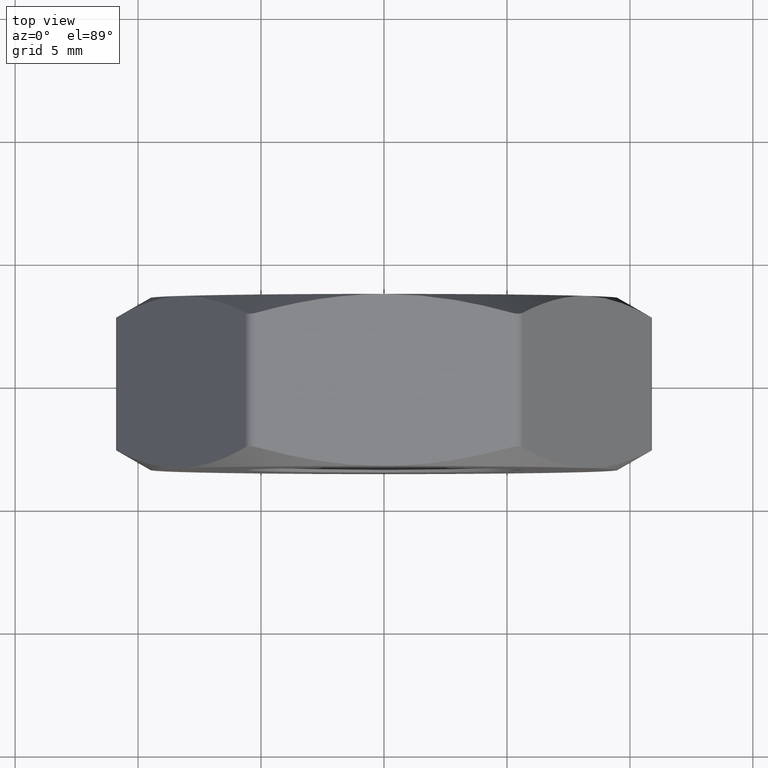
[diagram: clean part render]
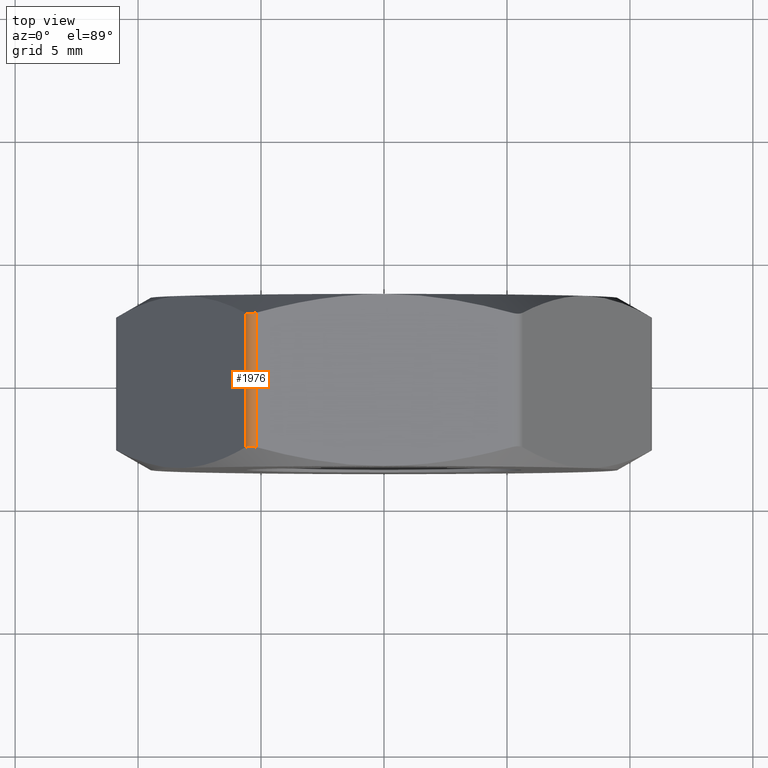
[diagram: same view with one face highlighted and labeled with its STEP entity id]
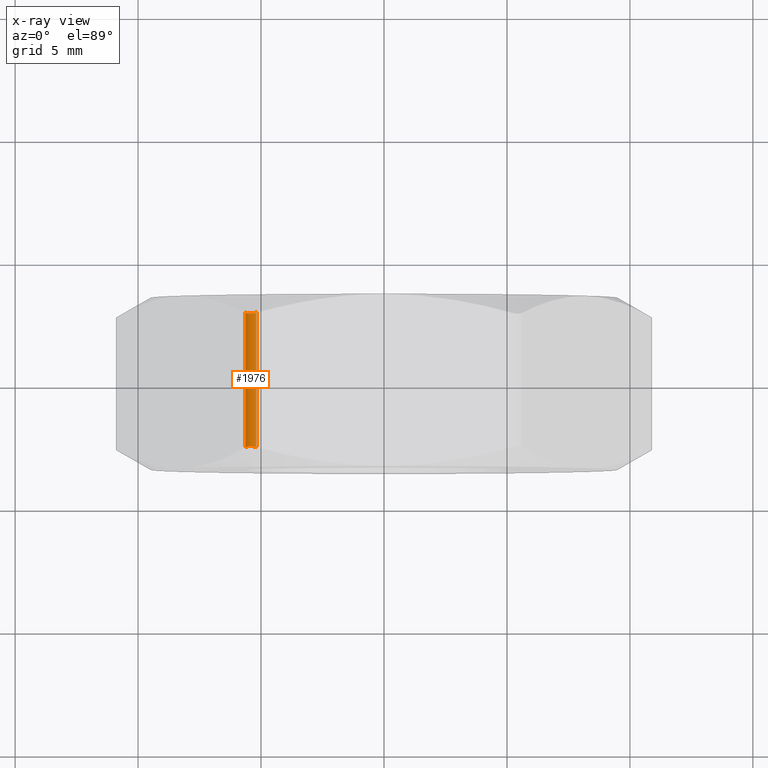
[diagram: x-ray of the same camera — body ghosted, the highlighted face saturated]
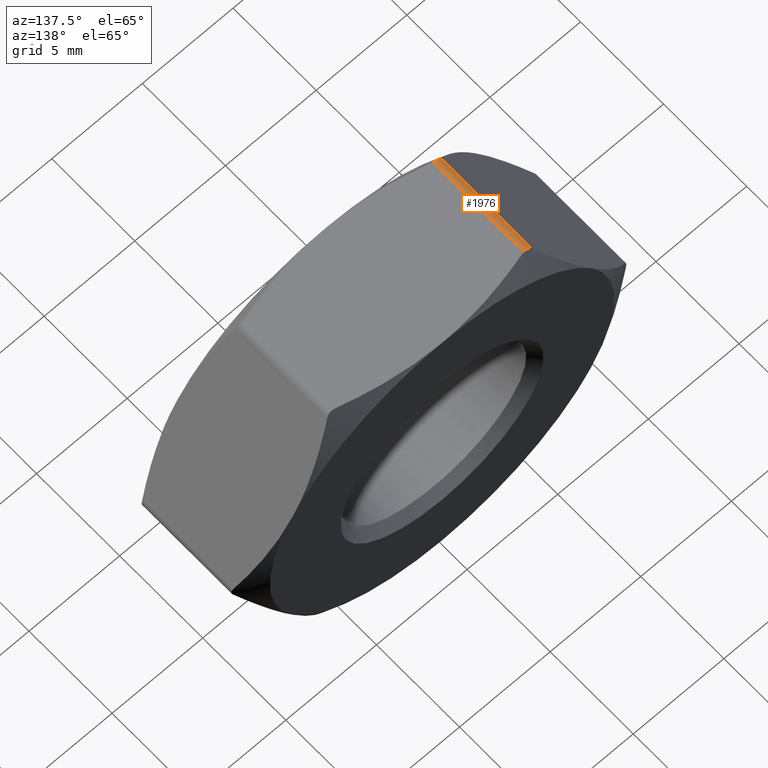
[diagram: same view with one face highlighted and labeled with its STEP entity id]
A machine part, top view. The second image highlights one B-rep face of the part: STEP entity #1976.
The next image is the same camera in x-ray: the body ghosted, the highlighted face saturated — about 0% of this face is hidden behind the body in this view.
A second angle (auxiliary view) of the same face is appended — the face is thin or edge-on in the first view.
In plain terms, the highlighted cylindrical surface (edge-blend (fillet) strip) has radius 0.5 mm, axis along (0, -1, 0).
Its self-contained STEP definition (entity closure, byte-faithful):
#244 = DIRECTION ( 'NONE',  ( 0.000000000000000000, -1.000000000000000000, 0.000000000000000000 ) ) ;
#382 = ORIENTED_EDGE ( 'NONE', *, *, #1546, .F. ) ;
#468 = VERTEX_POINT ( 'NONE', #3564 ) ;
#1163 = CARTESIAN_POINT ( 'NONE',  ( -5.522793143055214848, 2.696196110277409019, 9.388672582389711252 ) ) ;
#1296 = CARTESIAN_POINT ( 'NONE',  ( -5.586231662572763490, 2.709371315874028241, 9.324362937574012022 ) ) ;
#1331 = LINE ( 'NONE', #12078, #10423 ) ;
#1546 = EDGE_CURVE ( 'NONE', #468, #1970, #5149, .T. ) ;
#1758 = CYLINDRICAL_SURFACE ( 'NONE', #9528, 0.5000000000000004441 ) ;
#1970 = VERTEX_POINT ( 'NONE', #6168 ) ;
#1976 = ADVANCED_FACE ( 'NONE', ( #11946 ), #1758, .T. ) ;
#2495 = CARTESIAN_POINT ( 'NONE',  ( -5.370289189536082475, 2.696108957237621784, 9.476903473387970678 ) ) ;
#2533 = VERTEX_POINT ( 'NONE', #11505 ) ;
#2780 = EDGE_CURVE ( 'NONE', #2533, #468, #11923, .T. ) ;
#3564 = CARTESIAN_POINT ( 'NONE',  ( -5.629165124598349834, 2.733161112797498404, 9.250000000000863309 ) ) ;
#3915 = CARTESIAN_POINT ( 'NONE',  ( -5.196152422707281282, -2.733161112797592551, 9.500000000000001776 ) ) ;
#3966 = CARTESIAN_POINT ( 'NONE',  ( -5.369432392636323215, -2.696196110277392588, 9.477215452927211459 ) ) ;
#4661 = CARTESIAN_POINT ( 'NONE',  ( -5.629165124598349834, 2.733161112797498404, 9.250000000000863309 ) ) ;
#4663 = EDGE_CURVE ( 'NONE', #10922, #2533, #13479, .T. ) ;
#4853 = CARTESIAN_POINT ( 'NONE',  ( -5.196152422707281282, 2.733161112797592551, 9.500000000000001776 ) ) ;
#5092 = CARTESIAN_POINT ( 'NONE',  ( -5.586216033881830079, -2.709362655883565285, 9.324390007260763724 ) ) ;
#5149 = B_SPLINE_CURVE_WITH_KNOTS ( 'NONE', 3,
 ( #4661, #1296, #1163, #2495, #10770, #4853 ),
 .UNSPECIFIED., .F., .F.,
 ( 4, 2, 4 ),
 ( 9.650992615314286706E-16, 0.0002637781458276249806, 0.0005275562916542848044 ),
 .UNSPECIFIED. ) ;
#5302 = DIRECTION ( 'NONE',  ( -0.000000000000000000, 1.000000000000000000, -0.000000000000000000 ) ) ;
#5623 = EDGE_LOOP ( 'NONE', ( #382, #14075, #9398, #14866 ) ) ;
#5736 = EDGE_CURVE ( 'NONE', #1970, #10922, #1331, .T. ) ;
#6168 = CARTESIAN_POINT ( 'NONE',  ( -5.196152422707281282, 2.733161112797592551, 9.500000000000001776 ) ) ;
#6257 = CARTESIAN_POINT ( 'NONE',  ( -5.196152422706628471, 3.500000000000000000, 9.000000000000001776 ) ) ;
#6322 = CARTESIAN_POINT ( 'NONE',  ( -5.629165124598848102, 3.500000000000000000, 9.250000000000001776 ) ) ;
#8692 = CARTESIAN_POINT ( 'NONE',  ( -5.522094562399192164, -2.696108957237635995, 9.389258600500994589 ) ) ;
#8727 = DIRECTION ( 'NONE',  ( 0.000000000000000000, -1.000000000000000000, 0.000000000000000000 ) ) ;
#9398 = ORIENTED_EDGE ( 'NONE', *, *, #4663, .F. ) ;
#9528 = AXIS2_PLACEMENT_3D ( 'NONE', #6257, #8727, #10952 ) ;
#9987 = CARTESIAN_POINT ( 'NONE',  ( -5.629165124598848990, -2.733161112797774184, 9.250000000000000000 ) ) ;
#10423 = VECTOR ( 'NONE', #244, 1000.000000000000000 ) ;
#10770 = CARTESIAN_POINT ( 'NONE',  ( -5.282050604140531291, 2.709362655883605253, 9.499999999999994671 ) ) ;
#10922 = VERTEX_POINT ( 'NONE', #11616 ) ;
#10952 = DIRECTION ( 'NONE',  ( 0.000000000000000000, 0.000000000000000000, -1.000000000000000000 ) ) ;
#11505 = CARTESIAN_POINT ( 'NONE',  ( -5.629165124598848990, -2.733161112797774184, 9.250000000000000000 ) ) ;
#11616 = CARTESIAN_POINT ( 'NONE',  ( -5.196152422707281282, -2.733161112797592551, 9.500000000000001776 ) ) ;
#11923 = LINE ( 'NONE', #6322, #15114 ) ;
#11946 = FACE_OUTER_BOUND ( 'NONE', #5623, .T. ) ;
#12078 = CARTESIAN_POINT ( 'NONE',  ( -5.196152422706628471, 3.500000000000000000, 9.500000000000001776 ) ) ;
#13479 = B_SPLINE_CURVE_WITH_KNOTS ( 'NONE', 3,
 ( #3915, #14783, #3966, #8692, #5092, #9987 ),
 .UNSPECIFIED., .F., .F.,
 ( 4, 2, 4 ),
 ( 6.327872022629089242E-16, 0.0002637781458277957424, 0.0005275562916549586361 ),
 .UNSPECIFIED. ) ;
#14075 = ORIENTED_EDGE ( 'NONE', *, *, #2780, .F. ) ;
#14783 = CARTESIAN_POINT ( 'NONE',  ( -5.282019346758962008, -2.709371315874077979, 9.500000000000000000 ) ) ;
#14866 = ORIENTED_EDGE ( 'NONE', *, *, #5736, .F. ) ;
#15114 = VECTOR ( 'NONE', #5302, 1000.000000000000000 ) ;